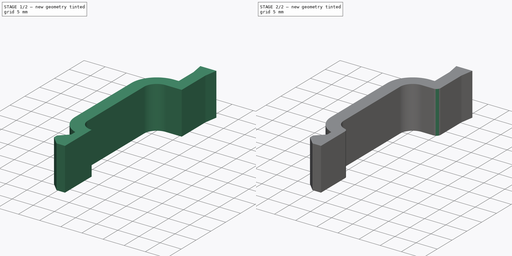
[diagram: build sequence overview — one tinted view per stage of 2, left to right]
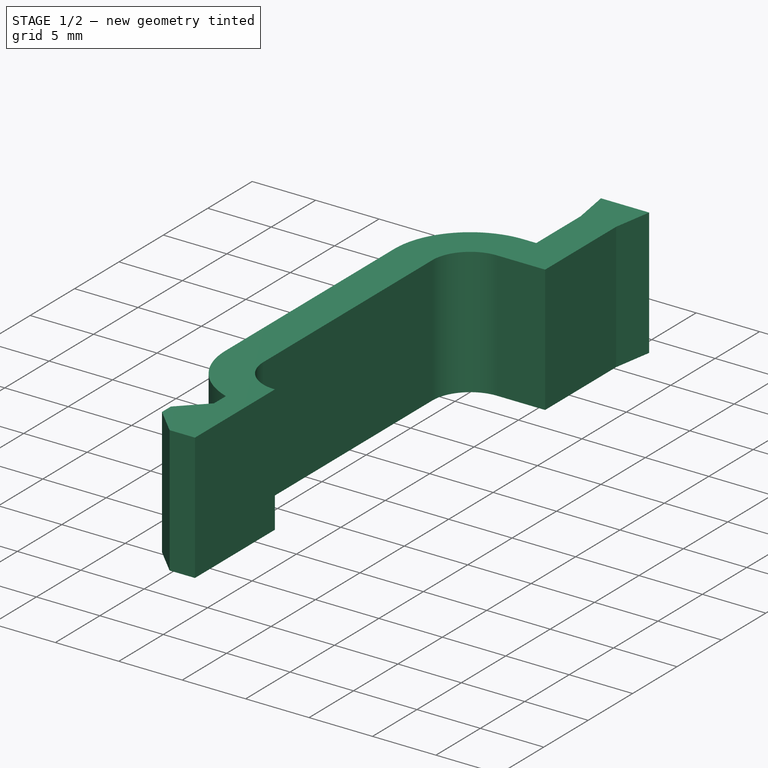
[diagram: stage 1 of 2 — iso view after this stage's code; geometry added in this stage tinted green]
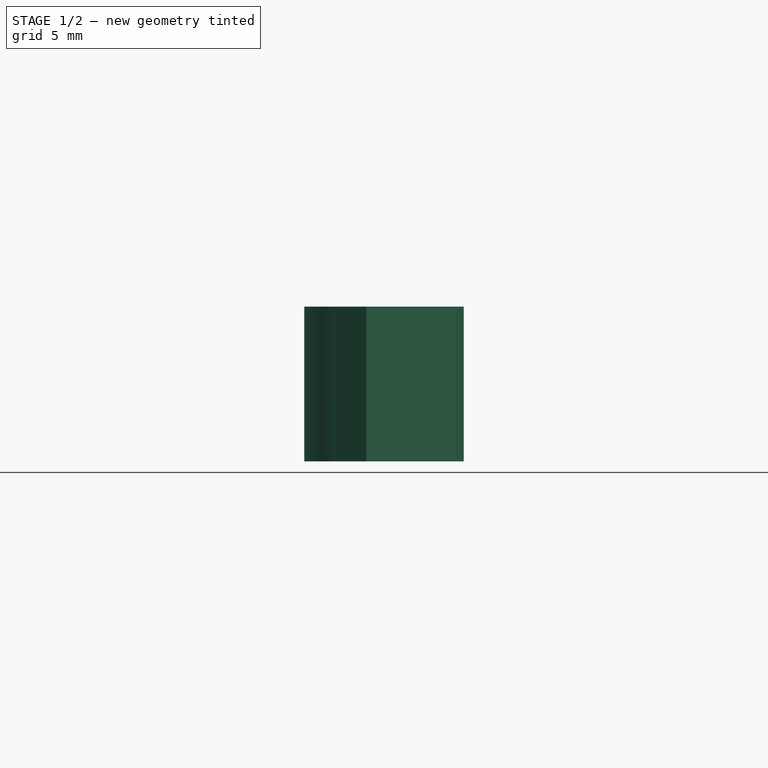
[diagram: stage 1 of 2 — front view after this stage's code; geometry added in this stage tinted green]
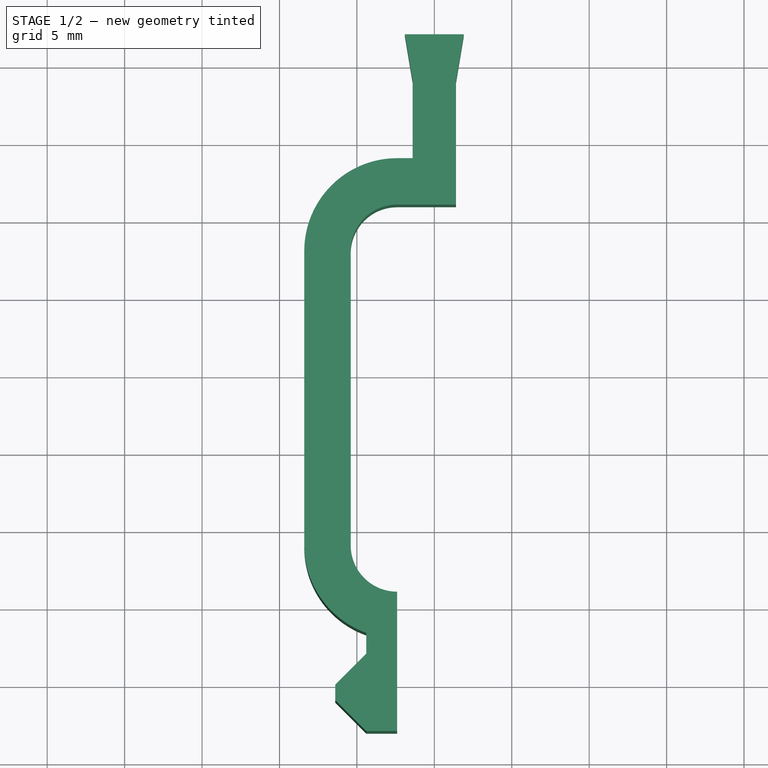
[diagram: stage 1 of 2 — top view after this stage's code; geometry added in this stage tinted green]
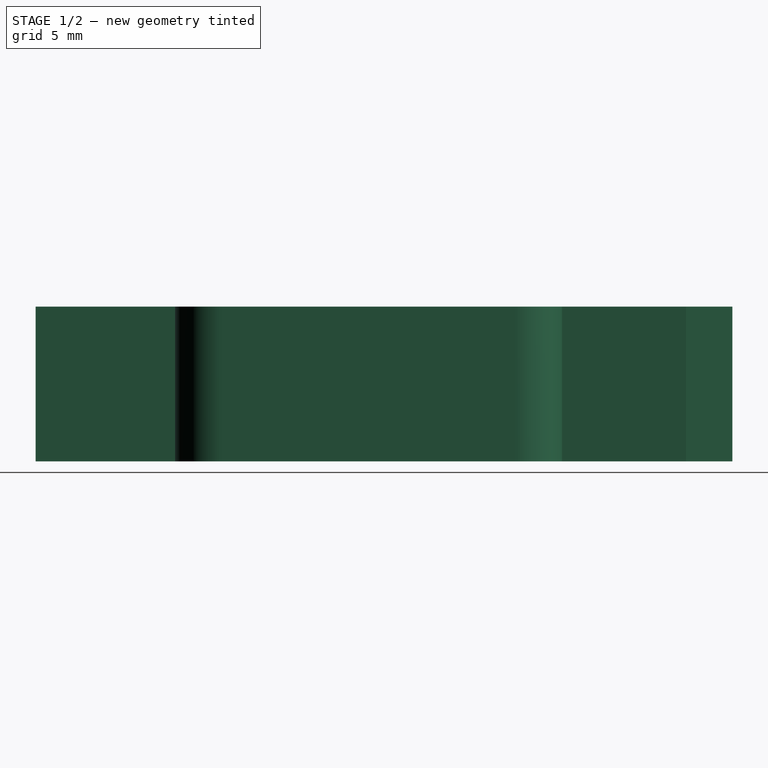
[diagram: stage 1 of 2 — right view after this stage's code; geometry added in this stage tinted green]
FCSTD DOCUMENT  (FreeCAD 1.0R39109 (Git))
Label: case lock
License: All rights reserved
objects: Sketcher::SketchObject×1, PartDesign::Pad×1, PartDesign::Fillet×1, PartDesign::Body×1
note: 9 computed .brp shape members not serialized (recipe doc carries the construction recipe); baked Part::Feature solids carry a one-line shape summary decoded from their .brp

FEATURE [Sketcher::SketchObject] Sketch
  ArcFitTolerance = 1e-06
  AttachmentSupport = -> [XY_Plane]
  FullyConstrained = true
  MakeInternals = false
  MapMode = 5
  sketch-geometry (26):
    g0: LineSegment StartX=-1.4 StartY=4 StartZ=0 EndX=-1.4 EndY=-1 EndZ=0
    g1: LineSegment StartX=1.4 StartY=-4 StartZ=0 EndX=1.4 EndY=4 EndZ=0
    g2: LineSegment StartX=-1.9 StartY=7 StartZ=0 EndX=-1.4 EndY=4 EndZ=0
    g3: LineSegment [constr] StartX=-1.4 StartY=4 StartZ=0 EndX=1.4 EndY=4 EndZ=0
    g4: LineSegment StartX=1.4 StartY=4 StartZ=0 EndX=1.9 EndY=7 EndZ=0
    g5: LineSegment StartX=1.9 StartY=7 StartZ=0 EndX=-1.9 EndY=7 EndZ=0
    g6: LineSegment StartX=1.4 StartY=-4 StartZ=0 EndX=-2.4 EndY=-4 EndZ=0
    g7: LineSegment StartX=-8.4 StartY=-7 StartZ=0 EndX=-8.4 EndY=-26 EndZ=0
    g8: LineSegment StartX=-1.4 StartY=-1 StartZ=0 EndX=-2.4 EndY=-1 EndZ=0
    g9: ArcOfCircle CenterX=-2.4 CenterY=-7 CenterZ=0 NormalX=0 NormalY=0 NormalZ=1 AngleXU=0 Radius=6 StartAngle=1.5708 EndAngle=3.14159
    g10: ArcOfCircle CenterX=-2.4 CenterY=-26 CenterZ=0 NormalX=0 NormalY=0 NormalZ=1 AngleXU=0 Radius=6 StartAngle=3.14159 EndAngle=4.37255
    g11: GeomPoint [constr] X=-8.4 Y=-1 Z=0
    g12: LineSegment StartX=-5.4 StartY=-7 StartZ=0 EndX=-5.4 EndY=-26 EndZ=0
    g13: ArcOfCircle CenterX=-2.4 CenterY=-7 CenterZ=0 NormalX=0 NormalY=0 NormalZ=1 AngleXU=0 Radius=3 StartAngle=1.5708 EndAngle=3.14159
    g14: ArcOfCircle CenterX=-2.4 CenterY=-26 CenterZ=0 NormalX=0 NormalY=0 NormalZ=1 AngleXU=0 Radius=3 StartAngle=3.14159 EndAngle=4.71239
    g15: GeomPoint [constr] X=-5.4 Y=-7 Z=0
    g16: LineSegment [constr] StartX=-2.4 StartY=-1 StartZ=0 EndX=-2.4 EndY=-4 EndZ=0
    g17: LineSegment StartX=-2.4 StartY=-29 StartZ=0 EndX=-2.4 EndY=-38 EndZ=0
    g18: LineSegment StartX=-4.4 StartY=-31.6569 StartZ=0 EndX=-4.4 EndY=-33 EndZ=0
    g19: LineSegment StartX=-6.4 StartY=-35 StartZ=0 EndX=-4.4 EndY=-33 EndZ=0
    g20: LineSegment StartX=-6.4 StartY=-35 StartZ=0 EndX=-6.4 EndY=-36 EndZ=0
    g21: LineSegment StartX=-6.4 StartY=-36 StartZ=0 EndX=-4.4 EndY=-38 EndZ=0
    g22: LineSegment StartX=-4.4 StartY=-38 StartZ=0 EndX=-2.4 EndY=-38 EndZ=0
    g23: LineSegment [constr] StartX=-4.4 StartY=-33 StartZ=0 EndX=-4.4 EndY=-38 EndZ=0
    g24: LineSegment [constr] StartX=-6.4 StartY=-35 StartZ=0 EndX=-4.4 EndY=-35 EndZ=0
    g25: LineSegment [constr] StartX=-6.4 StartY=-36 StartZ=0 EndX=-4.4 EndY=-36 EndZ=0
  constraints (66):
    c: Vertical(g0)
    c: Coincident(g2,g3)
    c: Coincident(g3,g4)
    c: Coincident(g4,g5)
    c: Coincident(g5,g2)
    c: Coincident(g0,g2)
    c: Coincident(g1,g3)
    c: Symmetric(g4,g2,g-2)
    c: DistanceY(g0,g0) = 5
    c: DistanceX(g0,g1) = 2.8
    c: Symmetric(g0,g1,g-2)
    c: DistanceX(g5,g5) = 3.8
    c: DistanceY(g0,g2) = 3
    c: DistanceY(g1,g1) = 8
    c: Coincident(g6,g1)
    c: Horizontal(g6)
    c: Tangent(g7,g9) = -1.5708
    c: Tangent(g7,g10) = -1.5708
    c: Tangent(g8,g9) = -1.5708
    c: Vertical(g7)
    c: Horizontal(g8)
    c: Equal(g9,g10)
    c: PointOnObject(g11,g7)
    c: PointOnObject(g11,g8)
    c: Coincident(g0,g8)
    c: Symmetric(g1,g1,g-1)
    c: DistanceX(g8,g0) = 1
    c: Radius(g9) = 6
    c: Tangent(g12,g13) = -1.5708
    c: Tangent(g12,g14) = -1.5708
    c: Vertical(g12)
    c: Coincident(g6,g13)
    c: Coincident(g12,g15)
    c: Coincident(g9,g13)
    c: Coincident(g10,g14)
    c: Vertical(g16)
    c: Coincident(g8,g16)
    c: Coincident(g6,g16)
    c: Vertical(g17)
    c: Vertical(g18)
    c: Coincident(g21,g20)
    c: Coincident(g21,g22)
    c: Coincident(g18,g19)
    c: Coincident(g23,g18)
    c: Coincident(g23,g21)
    c: Vertical(g23)
    c: Coincident(g17,g22)
    c: DistanceX(g18,g17) = 2
    c: Coincident(g19,g20)
    c: Horizontal(g24)
    c: Horizontal(g25)
    c: Coincident(g24,g19)
    c: PointOnObject(g24,g23)
    c: Coincident(g25,g20)
    c: PointOnObject(g25,g23)
    c: Vertical(g20)
    c: DistanceY(g17,g1) = 42
    c: DistanceY(g17,g1) = 25
    c: DistanceX(g24,g24) = 2
    c: DistanceY(g21,g18) = 5
    c: DistanceY(g20,g20) = 1
    c: DistanceY(g21,g20) = 2
    c: Coincident(g10,g18)
    c: Coincident(g14,g17)
    c: Horizontal(g22)
    c: DistanceX(g10,g0) = 3
FEATURE [PartDesign::Pad] Pad
  Direction = (0,0,1)
  Length = 10
  Length2 = 10
  Profile = -> Sketch
  ReferenceAxis = -> Sketch [N_Axis]
  Refine = true
  Suppressed = false
  Type = 0
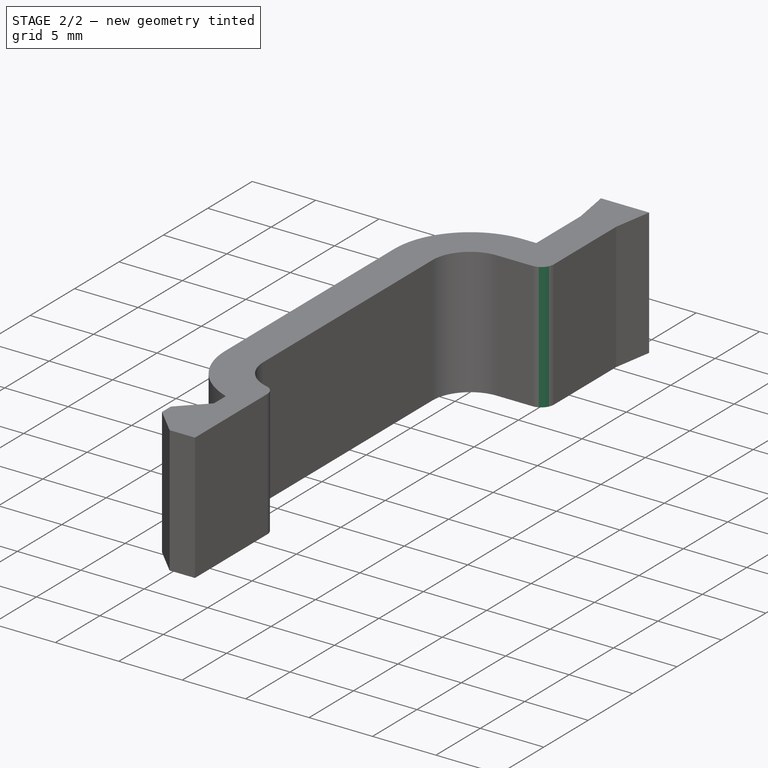
[diagram: stage 2 of 2 — iso view after this stage's code; geometry added in this stage tinted green]
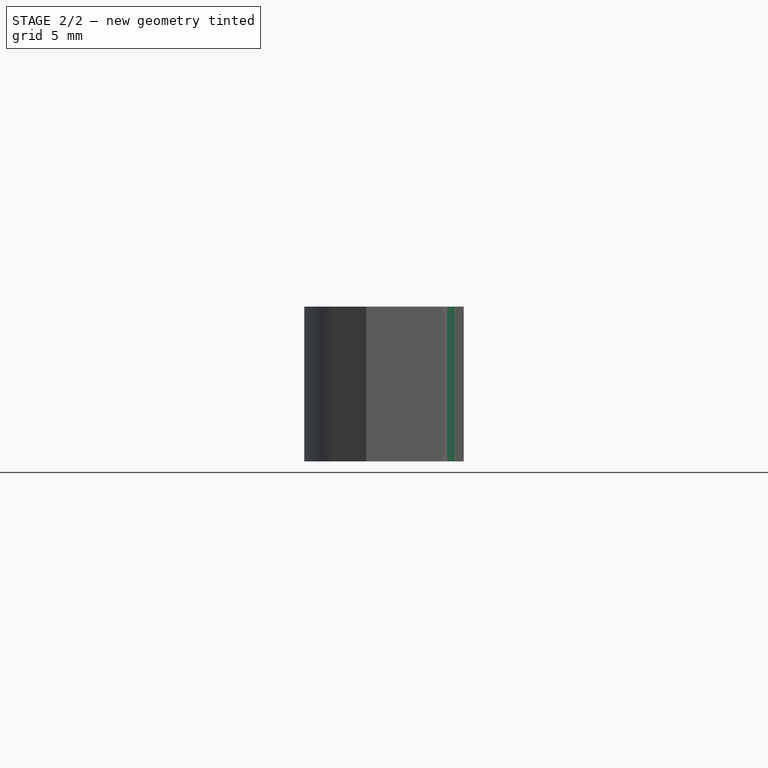
[diagram: stage 2 of 2 — front view after this stage's code; geometry added in this stage tinted green]
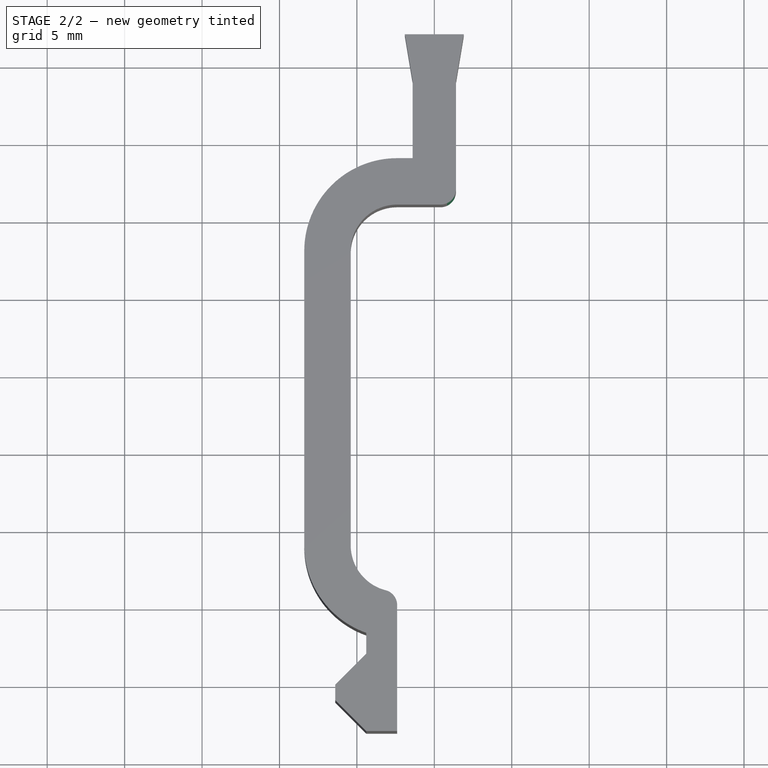
[diagram: stage 2 of 2 — top view after this stage's code; geometry added in this stage tinted green]
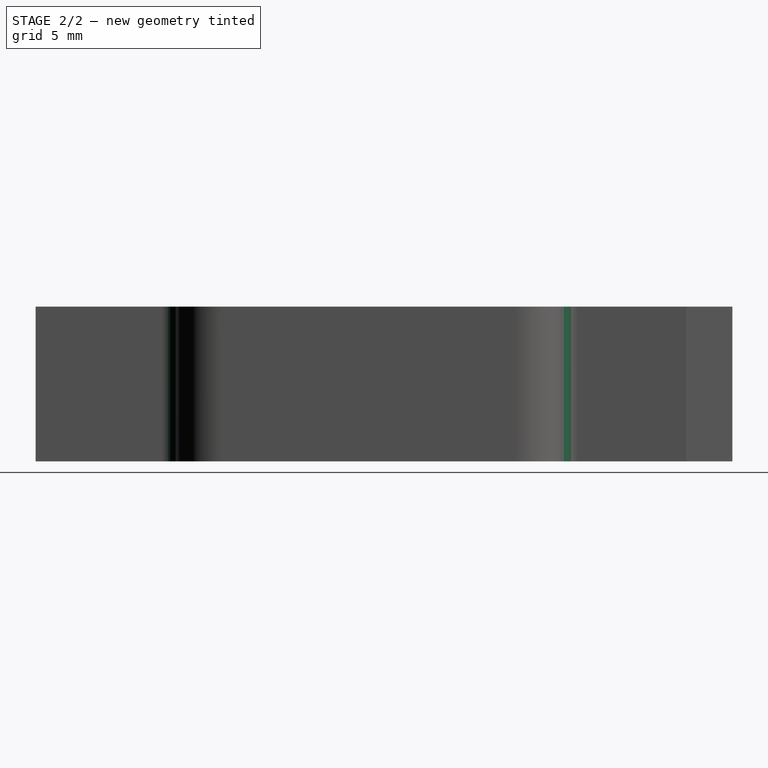
[diagram: stage 2 of 2 — right view after this stage's code; geometry added in this stage tinted green]
FEATURE [PartDesign::Fillet] Fillet
  Base = -> Pad [Edge1,Edge44]
  BaseFeature = -> Pad
  Radius = 1
  Refine = true
  SupportTransform = false
  Suppressed = false
  UseAllEdges = false
FEATURE [PartDesign::Body] Body
  AllowCompound = false
  Group = -> [Sketch,Pad,Fillet]
  Origin = -> Origin
  Tip = -> Fillet
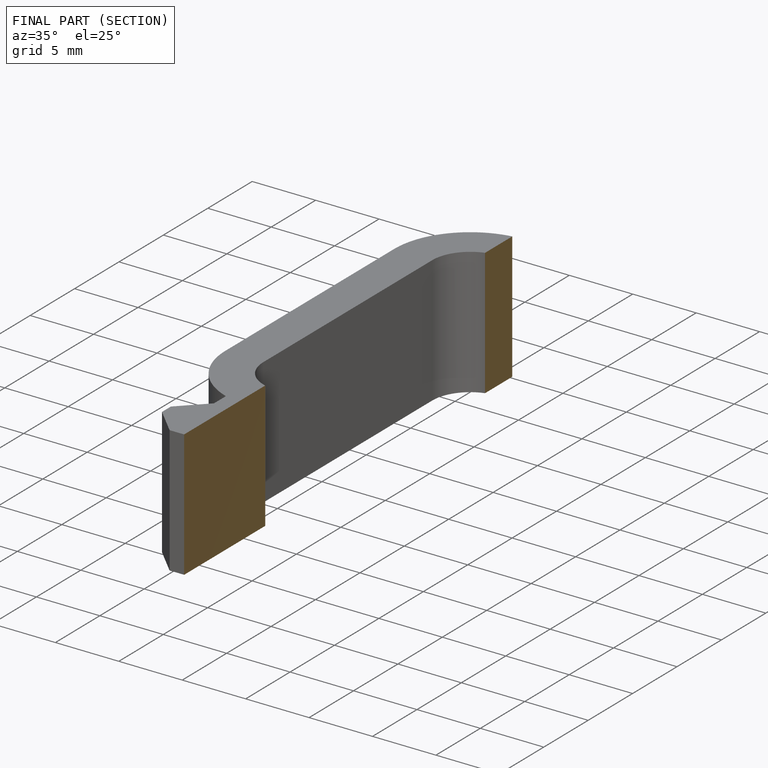
[diagram: finished part — half-section view (interior)]
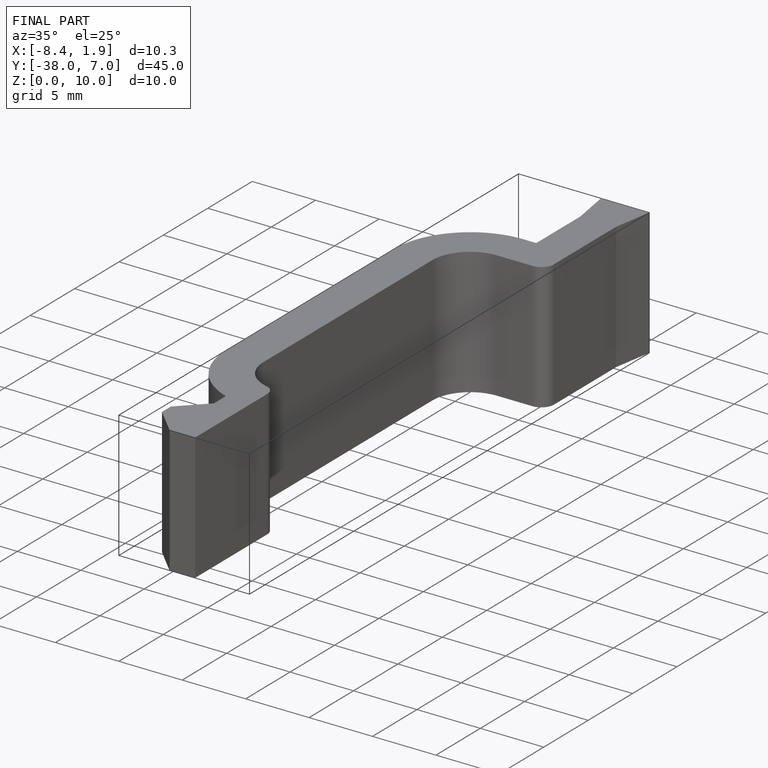
[diagram: finished part — iso view with bounding-box wireframe]
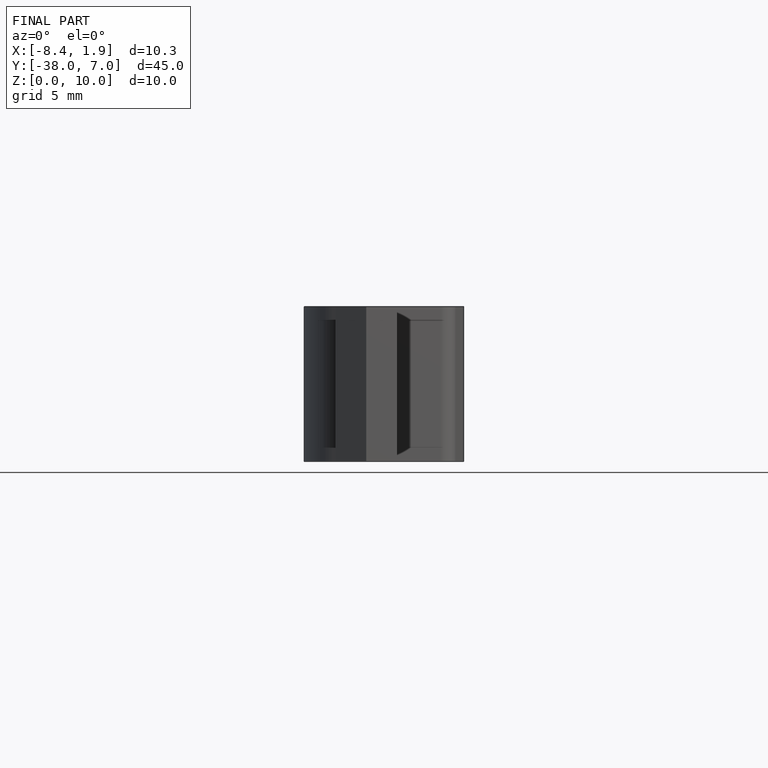
[diagram: finished part — front view with bounding-box wireframe]
